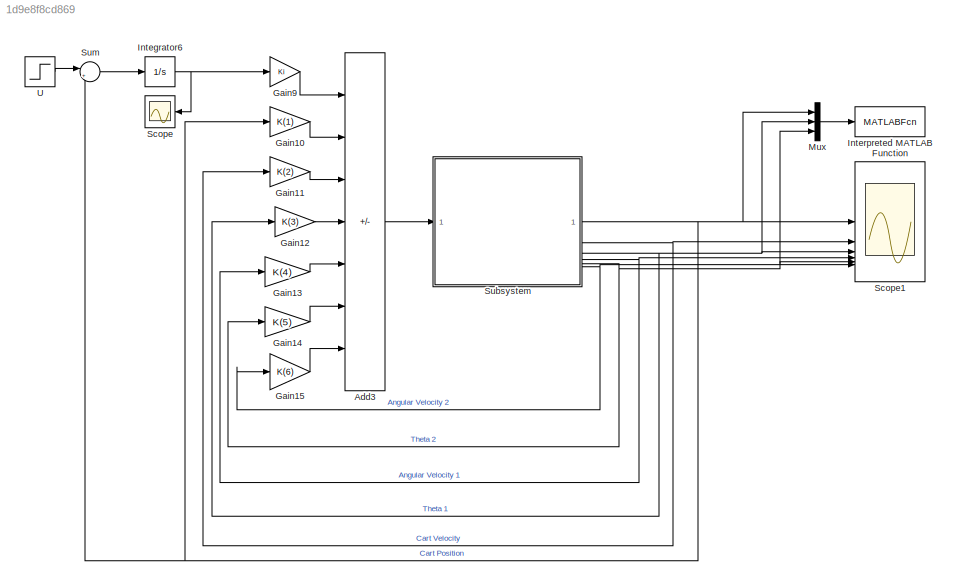
MODEL slx_1d9e8f8cd869
KIND model
CONFIG AbsTol = auto
CONFIG EnableMultiTasking = off
CONFIG FixedStep = auto
CONFIG MaxStep = auto
CONFIG MinStep = auto
CONFIG RelTol = 1e-3
CONFIG SampleTimeConstraint = Unconstrained
CONFIG SolverName = VariableStepAuto
CONFIG StartTime = 0.0
CONFIG StopTime = 5
BLOCK [Sum] Add3
  IconShape = rectangular
  Inputs = +------
BLOCK [Gain] Gain10
  Gain = K(1)
BLOCK [Gain] Gain11
  Gain = K(2)
BLOCK [Gain] Gain12
  Gain = K(3)
BLOCK [Gain] Gain13
  Gain = K(4)
BLOCK [Gain] Gain14
  Gain = K(5)
BLOCK [Gain] Gain15
  Gain = K(6)
BLOCK [Gain] Gain9
  Gain = Ki
BLOCK [Integrator] Integrator6
BLOCK [MATLABFcn] Interpreted MATLAB Function
  MATLABFcn = call
  OutputDimensions = 0
BLOCK [Mux] Mux
  DisplayOption = bar
  Inputs = 3
BLOCK [Scope] Scope
  Floating = off
  NumInputPorts = 1
  ScopeSpecificationString = Simulink.scopes.TimeScopeBlockCfg('CurrentConfiguration', extmgr.ConfigurationSet(extmgr.Configuration('Core','General UI',true),extmgr.Configuration('Core','Source UI',true),extmgr.Configuration('Sources','WiredSimulink',true),extmgr.Configuration('Visuals','Time Domain',true,'SerializedDisplays',{struct('MinYLimReal','-0.11101','MaxYLimReal','0.99911','YLabelReal','','MinYLimMag','0.00000','MaxY...<+1356ch>
BLOCK [Scope] Scope1
  Floating = off
  NumInputPorts = 6
  ScopeSpecificationString = Simulink.scopes.TimeScopeBlockCfg('CurrentConfiguration', extmgr.ConfigurationSet(extmgr.Configuration('Core','General UI',true),extmgr.Configuration('Core','Source UI',true),extmgr.Configuration('Sources','WiredSimulink',true,'DataLoggingVariableName','ScopeData1'),extmgr.Configuration('Visuals','Time Domain',true,'SerializedDisplays',{struct('MinYLimReal','-0.37793','MaxYLimReal','1.46292','YLab...<+4978ch>
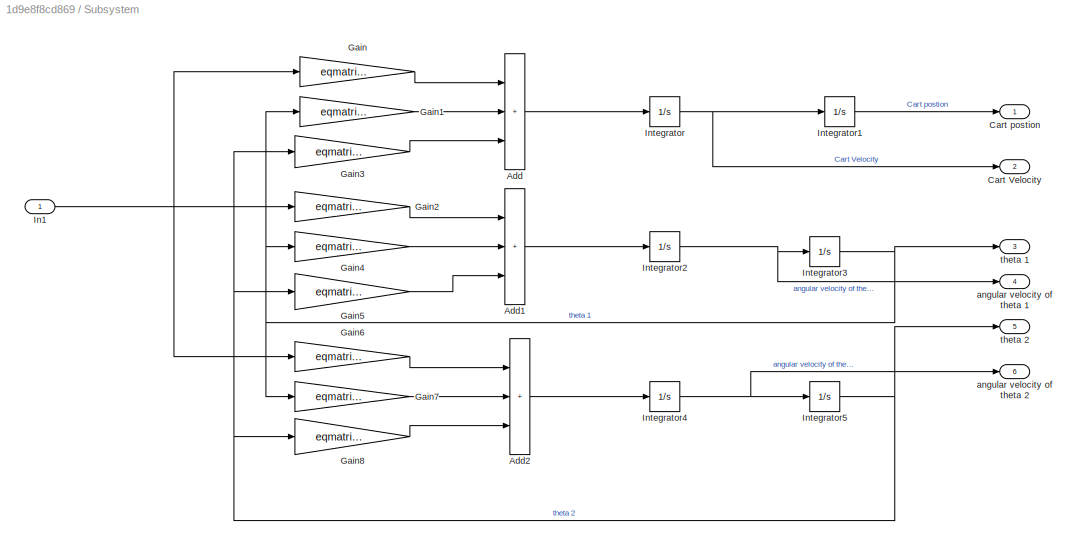
BLOCK [SubSystem] Subsystem
BLOCK [Sum] Subsystem/Add
  IconShape = rectangular
  Inputs = +++
BLOCK [Sum] Subsystem/Add1
  IconShape = rectangular
  Inputs = +++
BLOCK [Sum] Subsystem/Add2
  IconShape = rectangular
  Inputs = +++
BLOCK [Outport] Subsystem/Cart Velocity
  Port = 2
BLOCK [Outport] Subsystem/Cart postion
BLOCK [Gain] Subsystem/Gain
  Gain = eqmatrix(1,1)
BLOCK [Gain] Subsystem/Gain1
  Gain = eqmatrix(1,2)
BLOCK [Gain] Subsystem/Gain2
  Gain = eqmatrix(2,1)
BLOCK [Gain] Subsystem/Gain3
  Gain = eqmatrix(1,3)
BLOCK [Gain] Subsystem/Gain4
  Gain = eqmatrix(2,2)
BLOCK [Gain] Subsystem/Gain5
  Gain = eqmatrix(2,3)
BLOCK [Gain] Subsystem/Gain6
  Gain = eqmatrix(3,1)
BLOCK [Gain] Subsystem/Gain7
  Gain = eqmatrix(3,2)
BLOCK [Gain] Subsystem/Gain8
  Gain = eqmatrix(3,3)
BLOCK [Inport] Subsystem/In1
BLOCK [Integrator] Subsystem/Integrator
BLOCK [Integrator] Subsystem/Integrator1
BLOCK [Integrator] Subsystem/Integrator2
BLOCK [Integrator] Subsystem/Integrator3
BLOCK [Integrator] Subsystem/Integrator4
BLOCK [Integrator] Subsystem/Integrator5
BLOCK [Outport] Subsystem/angular velocity of theta 1
  Port = 4
BLOCK [Outport] Subsystem/angular velocity of theta 2
  Port = 6
BLOCK [Outport] Subsystem/theta 1
  Port = 3
BLOCK [Outport] Subsystem/theta 2
  Port = 5
BLOCK [Sum] Sum
  Inputs = |+-
BLOCK [Step] U
  SampleTime = 0
LINE Add3:1 -> Subsystem:1
LINE Gain10:1 -> Add3:2
LINE Gain11:1 -> Add3:3
LINE Gain12:1 -> Add3:4
LINE Gain13:1 -> Add3:5
LINE Gain14:1 -> Add3:6
LINE Gain15:1 -> Add3:7
LINE Gain9:1 -> Add3:1
NET Integrator6:1 -> Gain9:1, Scope:1
LINE Mux:1 -> Interpreted MATLAB Function:1
LINE Subsystem/Add1:1 -> Subsystem/Integrator2:1
LINE Subsystem/Add2:1 -> Subsystem/Integrator4:1
LINE Subsystem/Add:1 -> Subsystem/Integrator:1
LINE Subsystem/Gain1:1 -> Subsystem/Add:2
LINE Subsystem/Gain2:1 -> Subsystem/Add1:1
LINE Subsystem/Gain3:1 -> Subsystem/Add:3
LINE Subsystem/Gain4:1 -> Subsystem/Add1:2
LINE Subsystem/Gain5:1 -> Subsystem/Add1:3
LINE Subsystem/Gain6:1 -> Subsystem/Add2:1
LINE Subsystem/Gain7:1 -> Subsystem/Add2:2
LINE Subsystem/Gain8:1 -> Subsystem/Add2:3
LINE Subsystem/Gain:1 -> Subsystem/Add:1
NET Subsystem/In1:1 -> Subsystem/Gain2:1, Subsystem/Gain6:1, Subsystem/Gain:1
LINE Subsystem/Integrator1:1 -> Subsystem/Cart postion:1
NET Subsystem/Integrator2:1 -> Subsystem/Integrator3:1, Subsystem/angular velocity of theta 1:1
NET Subsystem/Integrator3:1 -> Subsystem/Gain1:1, Subsystem/Gain4:1, Subsystem/Gain7:1, Subsystem/theta 1:1
NET Subsystem/Integrator4:1 -> Subsystem/Integrator5:1, Subsystem/angular velocity of theta 2:1
NET Subsystem/Integrator5:1 -> Subsystem/Gain3:1, Subsystem/Gain5:1, Subsystem/Gain8:1, Subsystem/theta 2:1
NET Subsystem/Integrator:1 -> Subsystem/Cart Velocity:1, Subsystem/Integrator1:1
NET Subsystem:1 -> Gain10:1, Mux:1, Scope1:1, Sum:2
NET Subsystem:2 -> Gain11:1, Scope1:2
NET Subsystem:3 -> Gain12:1, Mux:2, Scope1:3
NET Subsystem:4 -> Gain13:1, Scope1:4
NET Subsystem:5 -> Gain14:1, Mux:3, Scope1:5
NET Subsystem:6 -> Gain15:1, Scope1:6
LINE Sum:1 -> Integrator6:1
LINE U:1 -> Sum:1
note: NET lines group one-source signal fan-out (src -> all destinations, sorted); 1:1 wires keep LINE
